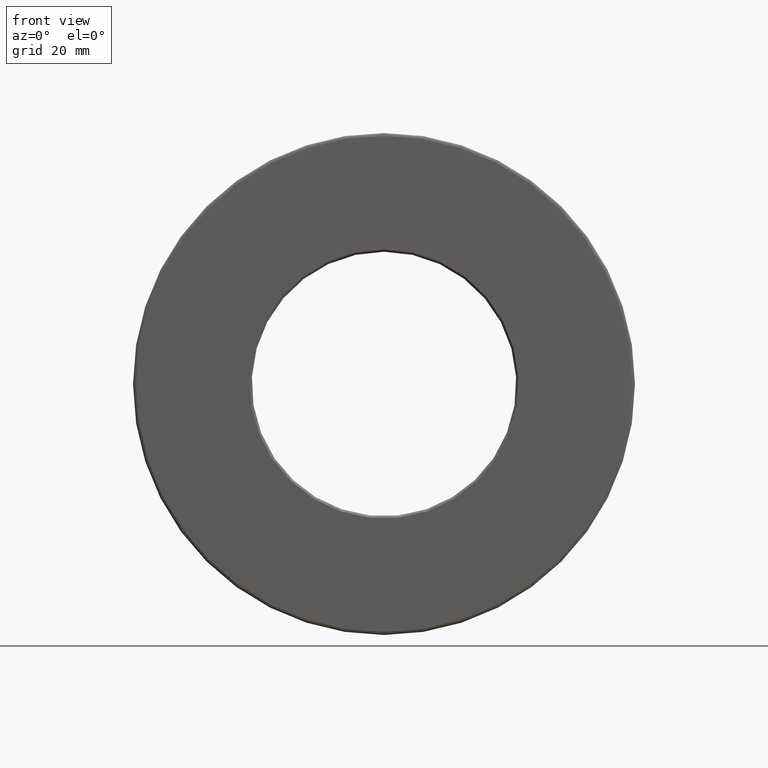
[diagram: clean part render]
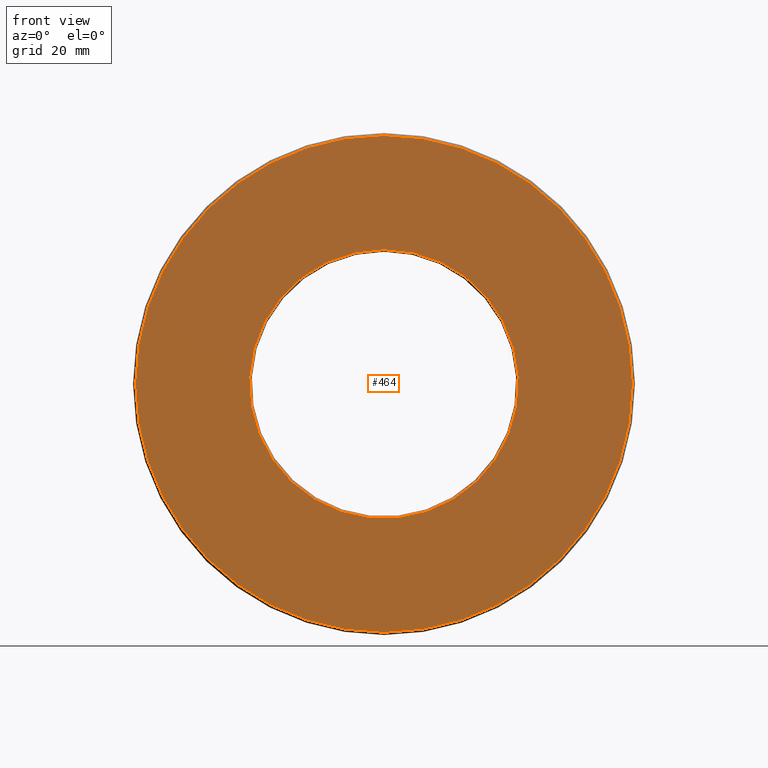
[diagram: same view with one face highlighted and labeled with its STEP entity id]
A machine part, front view. The second image highlights one B-rep face of the part: STEP entity #464.
In plain terms, the highlighted planar face has unit normal (-0, 1, 0).
Its self-contained STEP definition (entity closure, byte-faithful):
#4 = CARTESIAN_POINT ( 'NONE',  ( -5.459571483445795000E-032, 7.416540451549464300E-017, 0.0000000000000000000 ) ) ;
#14 = CIRCLE ( 'NONE', #31, 1.238750000000000000 ) ;
#31 = AXIS2_PLACEMENT_3D ( 'NONE', #453, #591, #313 ) ;
#41 = EDGE_CURVE ( 'NONE', #194, #194, #14, .T. ) ;
#47 = EDGE_LOOP ( 'NONE', ( #291 ) ) ;
#49 = DIRECTION ( 'NONE',  ( 0.0000000000000000000, 0.0000000000000000000, 1.000000000000000000 ) ) ;
#59 = FACE_OUTER_BOUND ( 'NONE', #47, .T. ) ;
#74 = CIRCLE ( 'NONE', #569, 2.287499999999999600 ) ;
#146 = VERTEX_POINT ( 'NONE', #603 ) ;
#182 = EDGE_LOOP ( 'NONE', ( #504 ) ) ;
#194 = VERTEX_POINT ( 'NONE', #211 ) ;
#210 = AXIS2_PLACEMENT_3D ( 'NONE', #4, #326, #49 ) ;
#211 = CARTESIAN_POINT ( 'NONE',  ( 0.0000000000000000000, 2.731847993664263200E-016, 1.238750000000000000 ) ) ;
#278 = PLANE ( 'NONE',  #210 ) ;
#281 = DIRECTION ( 'NONE',  ( 0.0000000000000000000, 0.0000000000000000000, 1.000000000000000000 ) ) ;
#291 = ORIENTED_EDGE ( 'NONE', *, *, #369, .F. ) ;
#313 = DIRECTION ( 'NONE',  ( 0.0000000000000000000, 0.0000000000000000000, 1.000000000000000000 ) ) ;
#326 = DIRECTION ( 'NONE',  ( -0.0000000000000000000, 1.000000000000000000, 0.0000000000000000000 ) ) ;
#369 = EDGE_CURVE ( 'NONE', #146, #146, #74, .T. ) ;
#411 = FACE_BOUND ( 'NONE', #182, .T. ) ;
#418 = DIRECTION ( 'NONE',  ( -0.0000000000000000000, 1.000000000000000000, -0.0000000000000000000 ) ) ;
#453 = CARTESIAN_POINT ( 'NONE',  ( 0.0000000000000000000, 2.731847993664263200E-016, 0.0000000000000000000 ) ) ;
#464 = ADVANCED_FACE ( 'NONE', ( #59, #411 ), #278, .F. ) ;
#504 = ORIENTED_EDGE ( 'NONE', *, *, #41, .T. ) ;
#558 = CARTESIAN_POINT ( 'NONE',  ( 0.0000000000000000000, -1.248539903354370400E-016, 0.0000000000000000000 ) ) ;
#569 = AXIS2_PLACEMENT_3D ( 'NONE', #558, #418, #281 ) ;
#591 = DIRECTION ( 'NONE',  ( -0.0000000000000000000, 1.000000000000000000, -0.0000000000000000000 ) ) ;
#603 = CARTESIAN_POINT ( 'NONE',  ( 0.0000000000000000000, -1.248539903354370400E-016, 2.287499999999999600 ) ) ;